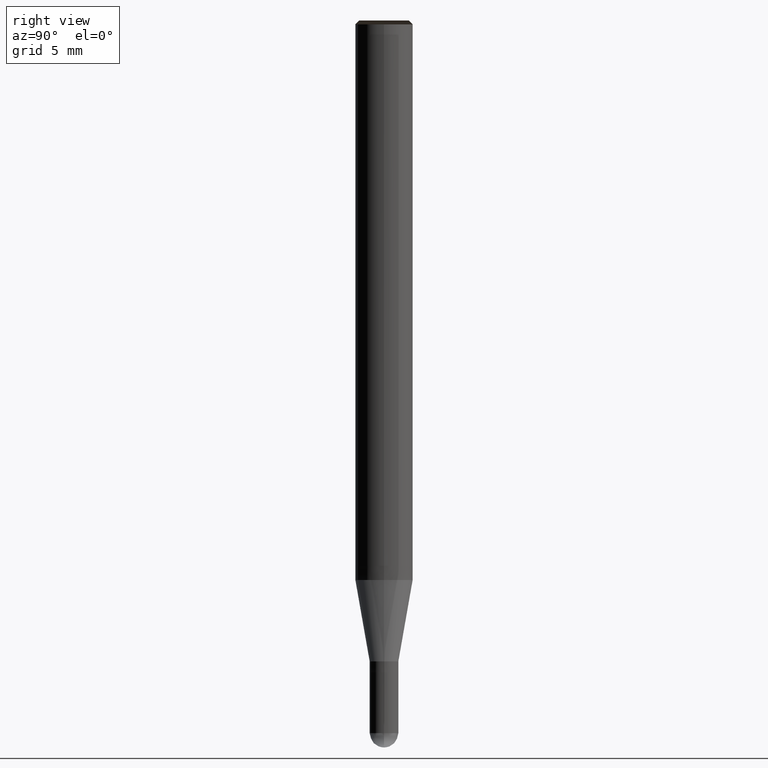
[diagram: clean part render]
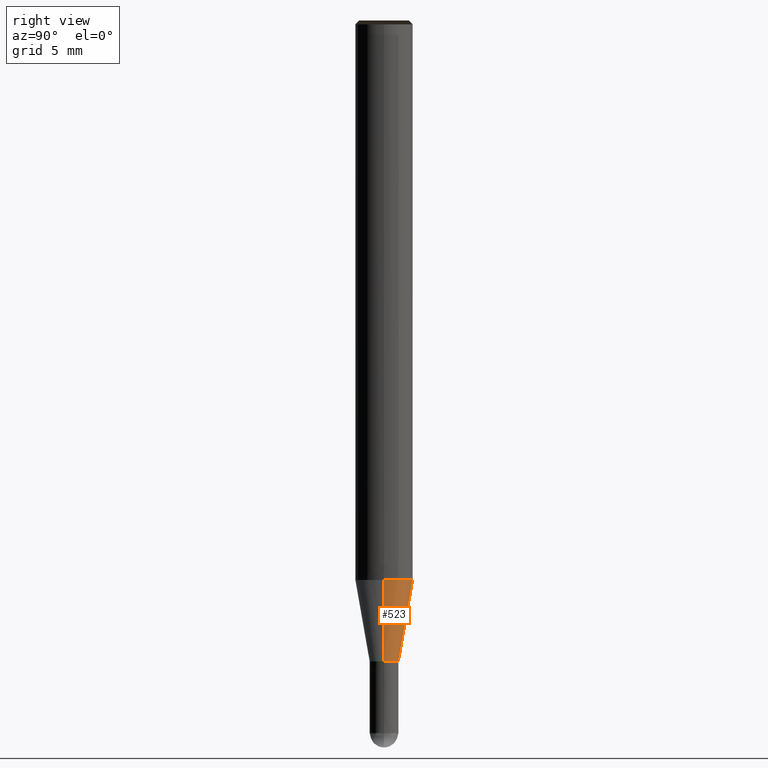
[diagram: same view with one face highlighted and labeled with its STEP entity id]
A machine part, right view. The second image highlights one B-rep face of the part: STEP entity #523.
In plain terms, the highlighted face is a freeform B-spline surface patch.
Its self-contained STEP definition (entity closure, byte-faithful):
#314=CARTESIAN_POINT('',(0.75,0.0,-5.0));
#315=CARTESIAN_POINT('',(0.75,0.75,-5.0));
#316=CARTESIAN_POINT('',(0.0,0.75,-5.0));
#317=CARTESIAN_POINT('',(-0.75,0.75,-5.0));
#318=CARTESIAN_POINT('',(-0.75,0.0,-5.0));
#319=CARTESIAN_POINT('',(1.5,0.0,-0.746538635287));
#320=CARTESIAN_POINT('',(1.5,1.5,-0.746538635287));
#321=CARTESIAN_POINT('',(0.0,1.5,-0.746538635287));
#322=CARTESIAN_POINT('',(-1.5,1.5,-0.746538635287));
#323=CARTESIAN_POINT('',(-1.5,0.0,-0.746538635287));
#504=(
BOUNDED_SURFACE()
B_SPLINE_SURFACE(1,2,(
(#314,#315,#316,#317,#318),
(#319,#320,#321,#322,#323)
), .UNSPECIFIED.,.F.,.F.,.F.)
B_SPLINE_SURFACE_WITH_KNOTS((2,2),(3,2,3),(
0.0,1.0),(
0.0,0.5,1.0), .UNSPECIFIED.)
GEOMETRIC_REPRESENTATION_ITEM()
RATIONAL_B_SPLINE_SURFACE(((1.0,0.707106781187,1.0,0.707106781187,1.0),
(1.0,0.707106781187,1.0,0.707106781187,1.0)
))
REPRESENTATION_ITEM('')
SURFACE()
);
#505=(
BOUNDED_CURVE()
B_SPLINE_CURVE(2,(#318,#317,#316,#315,#314),.UNSPECIFIED.,.F.,.F.)
B_SPLINE_CURVE_WITH_KNOTS((3,2,3),
(0.0,0.5,1.0),.UNSPECIFIED.)
CURVE()
GEOMETRIC_REPRESENTATION_ITEM()
RATIONAL_B_SPLINE_CURVE((1.0,0.707106781187,1.0,0.707106781187,1.0))
REPRESENTATION_ITEM('')
);
#506=(
BOUNDED_CURVE()
B_SPLINE_CURVE(1,(#314,#319),.UNSPECIFIED.,.F.,.F.)
B_SPLINE_CURVE_WITH_KNOTS((2,2),
(0.0,1.0),.UNSPECIFIED.)
CURVE()
GEOMETRIC_REPRESENTATION_ITEM()
RATIONAL_B_SPLINE_CURVE((1.0,1.0))
REPRESENTATION_ITEM('')
);
#507=(
BOUNDED_CURVE()
B_SPLINE_CURVE(2,(#319,#320,#321,#322,#323),.UNSPECIFIED.,.F.,.F.)
B_SPLINE_CURVE_WITH_KNOTS((3,2,3),
(0.0,0.5,1.0),.UNSPECIFIED.)
CURVE()
GEOMETRIC_REPRESENTATION_ITEM()
RATIONAL_B_SPLINE_CURVE((1.0,0.707106781187,1.0,0.707106781187,1.0))
REPRESENTATION_ITEM('')
);
#508=(
BOUNDED_CURVE()
B_SPLINE_CURVE(1,(#323,#318),.UNSPECIFIED.,.F.,.F.)
B_SPLINE_CURVE_WITH_KNOTS((2,2),
(0.0,1.0),.UNSPECIFIED.)
CURVE()
GEOMETRIC_REPRESENTATION_ITEM()
RATIONAL_B_SPLINE_CURVE((1.0,1.0))
REPRESENTATION_ITEM('')
);
#509=VERTEX_POINT('',#314);
#510=VERTEX_POINT('',#318);
#511=VERTEX_POINT('',#319);
#512=VERTEX_POINT('',#323);
#513=EDGE_CURVE('',#510,#509,#505,.T.);
#514=EDGE_CURVE('',#509,#511,#506,.T.);
#515=EDGE_CURVE('',#511,#512,#507,.T.);
#516=EDGE_CURVE('',#512,#510,#508,.T.);
#517=ORIENTED_EDGE('',*,*,#513,.T.);
#518=ORIENTED_EDGE('',*,*,#514,.T.);
#519=ORIENTED_EDGE('',*,*,#515,.T.);
#520=ORIENTED_EDGE('',*,*,#516,.T.);
#521=EDGE_LOOP('',(#517,#518,#519,#520));
#522=FACE_OUTER_BOUND('',#521,.T.);
#523=ADVANCED_FACE('',(#522),#504,.T.);